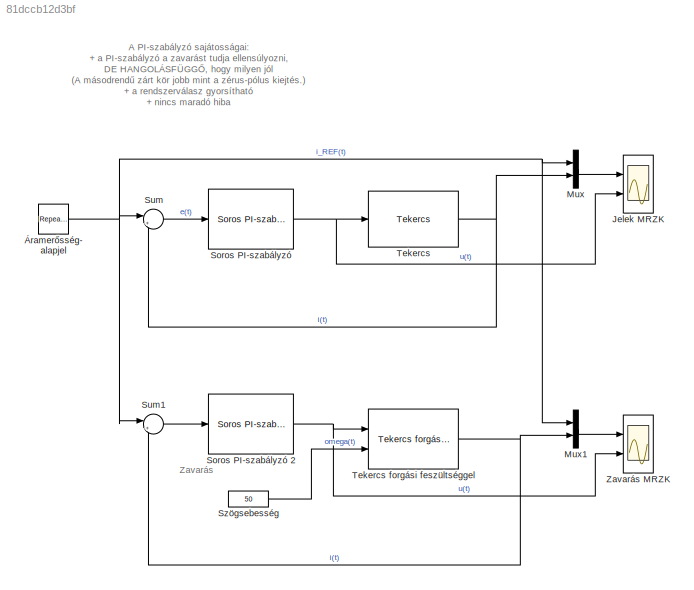
MODEL slx_81dccb12d3bf
KIND model
CONFIG InitFcn = % Modellparaméterek\nR = 250e-3;\nL = 10e-3;\nPsi_0 = 0.5e-3;\n\ni_0 = 0;\ntheta_0 = 0;\n\n% Rendszerparaméterek\nK = 1/R;\ntau = L/R;\n\n% PI-hangolás\ntau_CL = tau/25;\nxi_CL = 1;\n\nK_PI = (2*xi_CL*tau - tau_CL)/(K*tau_CL);\nT_I = (2*xi_CL*tau - tau_CL)*tau_CL/tau;
BLOCK [Scope] Jelek MRZK
  DataFormat = StructureWithTime
  Floating = off
  LegendLocations = 0.86871     0.91797    0.099896    0.040359\n0.89213       0.463    0.075963    0.022795
  LimitDataPoints = off
  NumInputPorts = 2
  Ports = [2]
  SampleTime = 0
  ShowLegends = on
  TimeRange = 1
  YMax = 0.3~0.25
  YMin = -0.4~-0.25
BLOCK [Mux] Mux
  DisplayOption = bar
  Inputs = 2
  Ports = [2, 1]
BLOCK [Mux] Mux1
  DisplayOption = bar
  Inputs = 2
  Ports = [2, 1]
BLOCK [Reference] Soros PI-szabályzó  REF=RI_MK/Soros PI-szabályzó
  K_PI = K_PI
  Ports = [1, 1]
  SourceBlock = RI_MK/Soros PI-szabályzó
  SourceType = Soros PI-szabályzó
  T_I = T_I
BLOCK [Reference] Soros PI-szabályzó 2  REF=RI_MK/Soros PI-szabályzó
  K_PI = K_PI
  Ports = [1, 1]
  SourceBlock = RI_MK/Soros PI-szabályzó
  SourceType = Soros PI-szabályzó
  T_I = T_I
BLOCK [Sum] Sum
  IconShape = round
  InputSameDT = off
  Inputs = |+-
  OutDataTypeStr = Inherit: Inherit via internal rule
  Ports = [2, 1]
  SaturateOnIntegerOverflow = off
BLOCK [Sum] Sum1
  IconShape = round
  InputSameDT = off
  Inputs = |+-
  OutDataTypeStr = Inherit: Inherit via internal rule
  Ports = [2, 1]
  SaturateOnIntegerOverflow = off
BLOCK [Constant] Szögsebesség
  Value = 50
BLOCK [Reference] Tekercs  REF=RI_MK/Tekercs
  L = L
  Ports = [1, 1]
  R = R
  SourceBlock = RI_MK/Tekercs
  SourceType = Tekercs
  i_0 = 0
BLOCK [Reference] Tekercs forgási feszültséggel  REF=RI_MK/Tekercs forgási feszültséggel
  L = L
  Ports = [2, 1]
  Psi_0 = Psi_0
  R = R
  SourceBlock = RI_MK/Tekercs forgási feszültséggel
  SourceType = Tekercs forgási feszültséggel
  i_0 = i_0
  theta_0 = theta_0
BLOCK [Scope] Zavarás MRZK
  DataFormat = StructureWithTime
  Floating = off
  LegendLocations = 0.86871     0.91797    0.099896    0.040359\n0.89213       0.463    0.075963    0.022795
  LimitDataPoints = off
  NumInputPorts = 2
  Ports = [2]
  SampleTime = 0
  SaveName = ScopeData1
  ShowLegends = on
  YMax = 5~5
  YMin = -5~-5
  ZoomMode = yonly
BLOCK [Reference] Áramerősség- alapjel  REF=simulink/Sources/Repeating
Sequence
Stair
  ConRadixGroup = Best Precision: Vector-wise
  LockScale = off
  OutDataType = fixdt(0,8)
  OutDataTypeStr = double
  OutMax = []
  OutMin = []
  OutScaling = 2^-12
  OutValues = [300, 100, -400, 200, -100]*1e-3
  OutputDataTypeScalingMode = double
  Ports = [0, 1]
  SourceBlock = simulink/Sources/Repeating\nSequence\nStair
  SourceType = Repeating Sequence Stair
  tsamp = L/R*5
ANNOTATION (root): A PI-szabályzó sajátosságai: + a PI-szabályzó a zavarást tudja ellensúlyozni, DE HANGOLÁSFÜGGŐ, hogy milyen jól (A másodrendű zárt kör jobb mint a zérus-pólus kiejtés.) + a rendszerválasz gyorsítható + nincs maradó hiba +- a gyorsabb zárt kör esetén nagyobb beavatkozó jel szükséges
ANNOTATION (root): Zavarás
LINE Mux1:1 -> Zavarás MRZK:1
LINE Mux:1 -> Jelek MRZK:1
NET Soros PI-szabályzó 2:1 -> Tekercs forgási feszültséggel:1, Zavarás MRZK:2
NET Soros PI-szabályzó:1 -> Jelek MRZK:2, Tekercs:1
LINE Sum1:1 -> Soros PI-szabályzó 2:1
LINE Sum:1 -> Soros PI-szabályzó:1
LINE Szögsebesség:1 -> Tekercs forgási feszültséggel:2
NET Tekercs forgási feszültséggel:1 -> Mux1:2, Sum1:2
NET Tekercs:1 -> Mux:2, Sum:2
NET Áramerősség- alapjel:1 -> Mux1:1, Mux:1, Sum1:1, Sum:1
note: NET lines group one-source signal fan-out (src -> all destinations, sorted); 1:1 wires keep LINE
